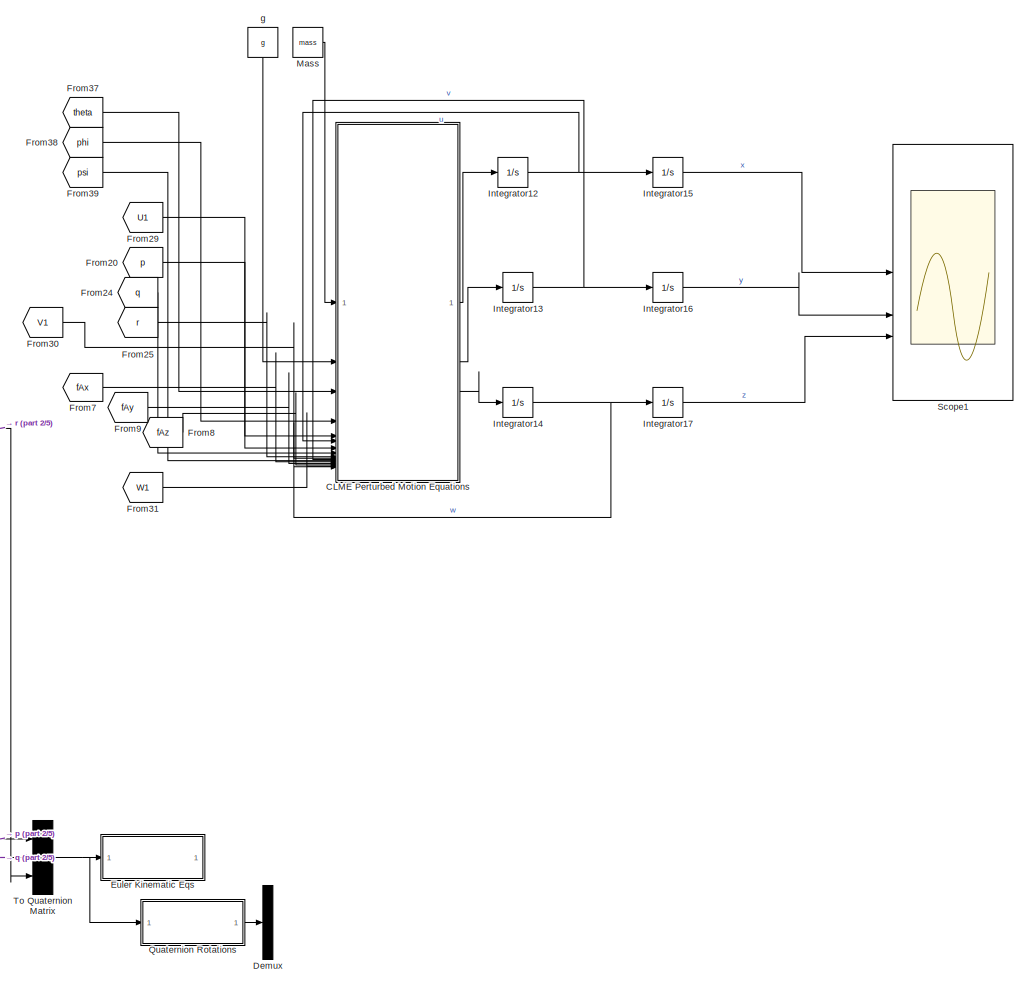
[diagram: root canvas - part 1/5, top right region]
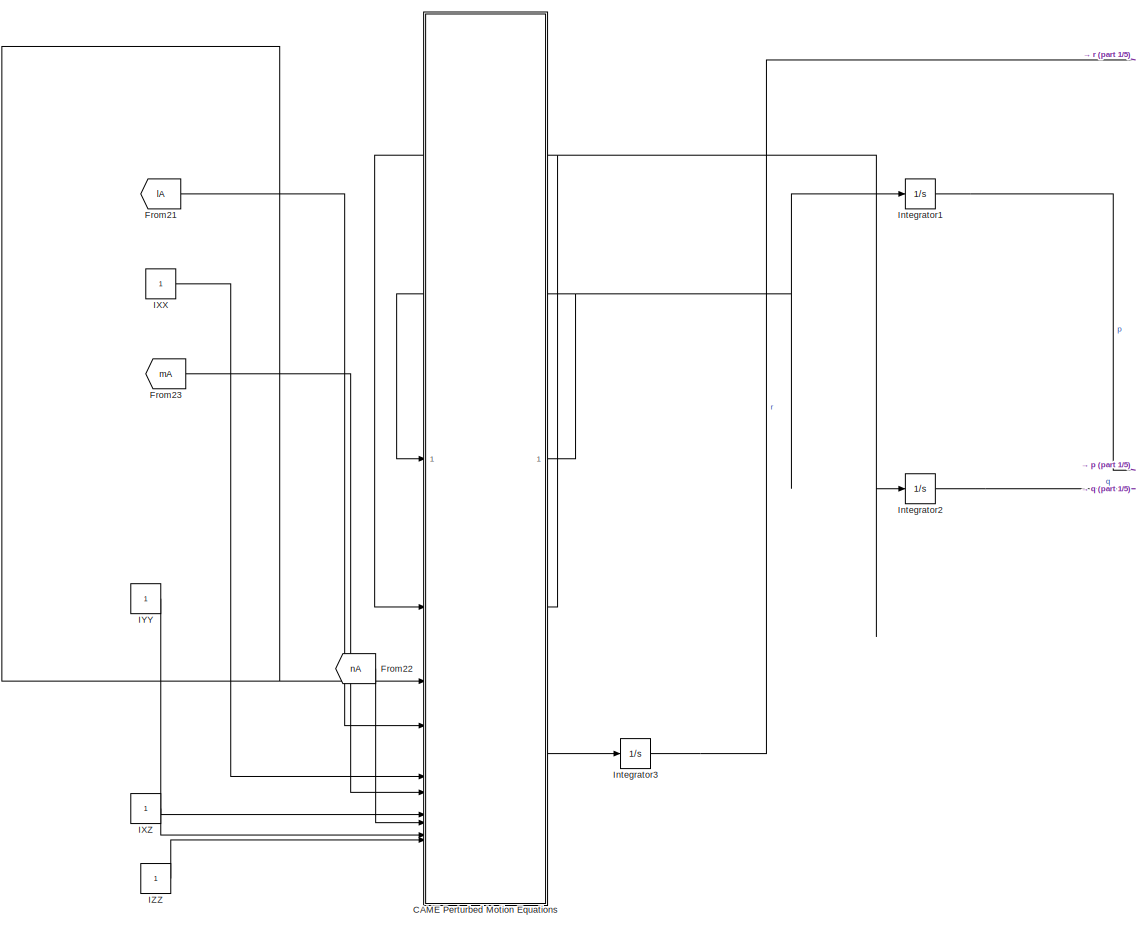
[diagram: root canvas - part 2/5, top center region]
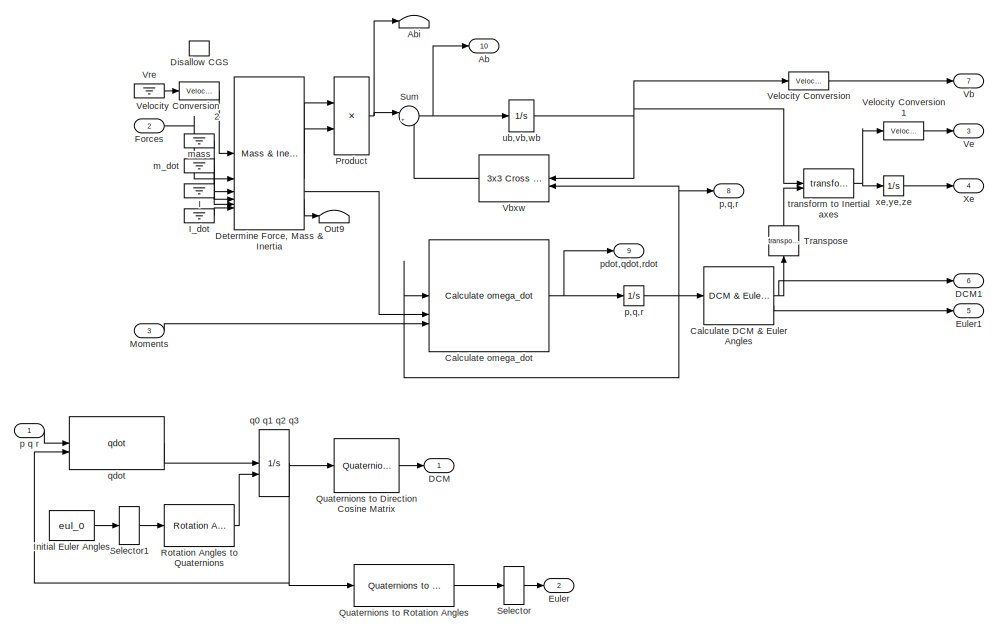
[diagram: root canvas - part 3/5, middle left region]
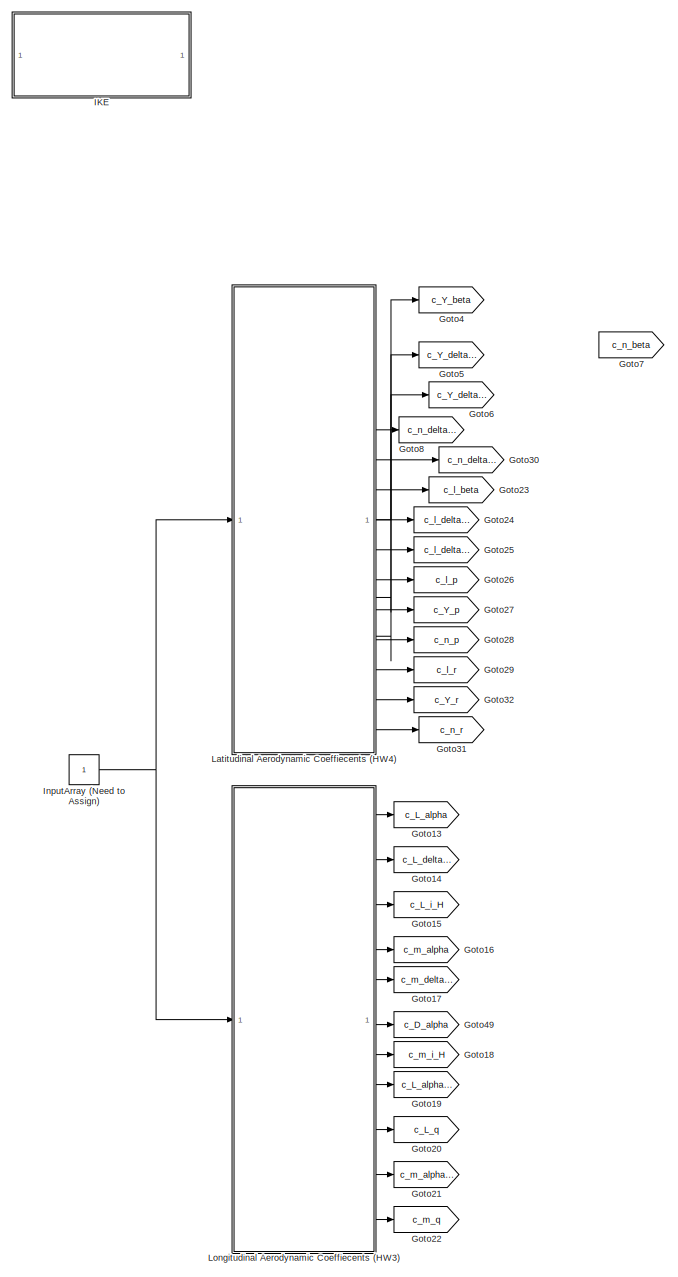
[diagram: root canvas - part 4/5, bottom center region]
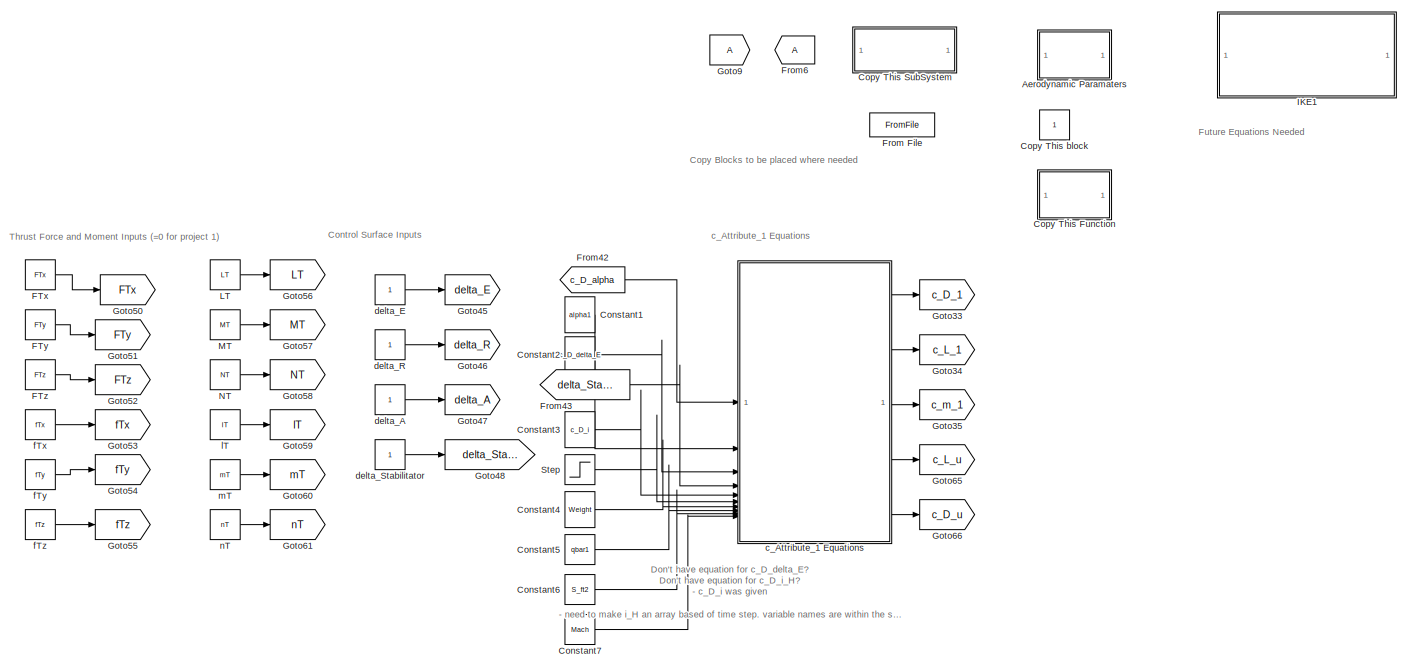
[diagram: root canvas - part 5/5, bottom right region]
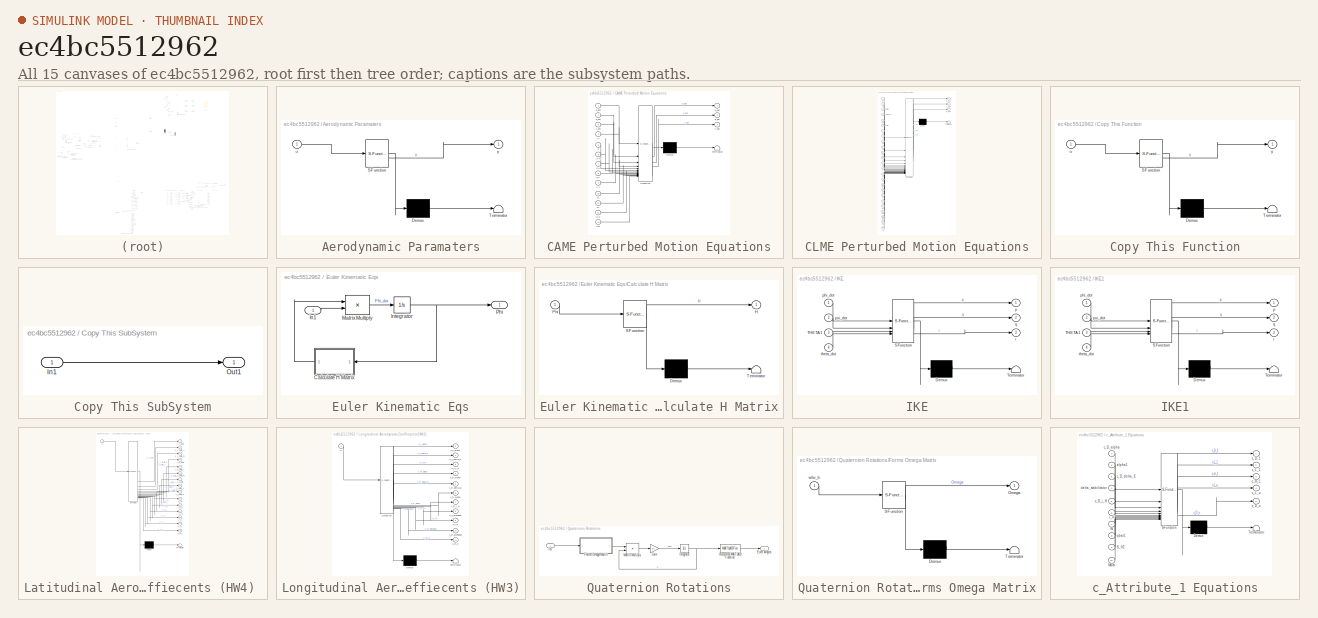
[diagram: thumbnail index - all 15 canvases of the model, root first then tree order]
MODEL slx_ec4bc5512962
KIND model
CONFIG AbsTol = auto
CONFIG EnableMultiTasking = off
CONFIG FixedStep = auto
CONFIG MaxStep = auto
CONFIG MinStep = auto
CONFIG RelTol = 1e-3
CONFIG SampleTimeConstraint = Unconstrained
CONFIG SolverName = VariableStepAuto
CONFIG StartTime = 0.0
CONFIG StopTime = 10.0
BLOCK [Outport] Ab
  OutDataTypeStr = double
  Port = 10
  Unit = ft/s^2
  VectorParamsAs1DForOutWhenUnconnected = off
BLOCK [Terminator] Abi
BLOCK [SubSystem] Aerodynamic Paramaters
  ErrorFcn = Stateflow.Translate.translate
  PermitHierarchicalResolution = ExplicitOnly
  SFBlockType = MATLAB Function
  TreatAsAtomicUnit = on
BLOCK [Demux] Aerodynamic Paramaters/ Demux 
  Outputs = 1
BLOCK [S-Function] Aerodynamic Paramaters/ SFunction 
  EnableBusSupport = on
  FunctionName = sf_sfun
  PortCounts = [1 2]
  SFcnIsStateOwnerBlock = off
  SFunctionDeploymentMode = off
  Tag = Stateflow S-Function 3
BLOCK [Terminator] Aerodynamic Paramaters/ Terminator 
BLOCK [Inport] Aerodynamic Paramaters/u
BLOCK [Outport] Aerodynamic Paramaters/y
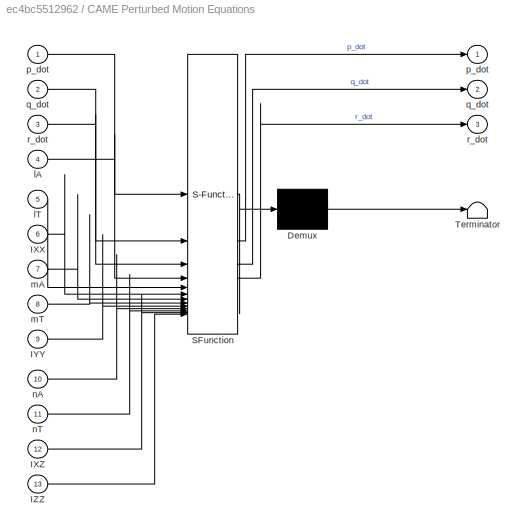
BLOCK [SubSystem] CAME Perturbed Motion Equations
  ErrorFcn = Stateflow.Translate.translate
  PermitHierarchicalResolution = ExplicitOnly
  SFBlockType = MATLAB Function
  TreatAsAtomicUnit = on
BLOCK [Demux] CAME Perturbed Motion Equations/ Demux 
  Outputs = 1
BLOCK [S-Function] CAME Perturbed Motion Equations/ SFunction 
  EnableBusSupport = on
  FunctionName = sf_sfun
  PortCounts = [13 4]
  SFcnIsStateOwnerBlock = off
  SFunctionDeploymentMode = off
  Tag = Stateflow S-Function 12
BLOCK [Terminator] CAME Perturbed Motion Equations/ Terminator 
BLOCK [Inport] CAME Perturbed Motion Equations/IXX
  Port = 6
BLOCK [Inport] CAME Perturbed Motion Equations/IXZ
  Port = 12
BLOCK [Inport] CAME Perturbed Motion Equations/IYY
  Port = 9
BLOCK [Inport] CAME Perturbed Motion Equations/IZZ
  Port = 13
BLOCK [Inport] CAME Perturbed Motion Equations/lA
  Port = 4
BLOCK [Inport] CAME Perturbed Motion Equations/lT
  Port = 5
BLOCK [Inport] CAME Perturbed Motion Equations/mA
  Port = 7
BLOCK [Inport] CAME Perturbed Motion Equations/mT
  Port = 8
BLOCK [Inport] CAME Perturbed Motion Equations/nA
  Port = 10
BLOCK [Inport] CAME Perturbed Motion Equations/nT
  Port = 11
BLOCK [Outport] CAME Perturbed Motion Equations/p_dot
BLOCK [Inport] CAME Perturbed Motion Equations/p_dot 
BLOCK [Outport] CAME Perturbed Motion Equations/q_dot
  Port = 2
BLOCK [Inport] CAME Perturbed Motion Equations/q_dot 
  Port = 2
BLOCK [Outport] CAME Perturbed Motion Equations/r_dot
  Port = 3
BLOCK [Inport] CAME Perturbed Motion Equations/r_dot 
  Port = 3
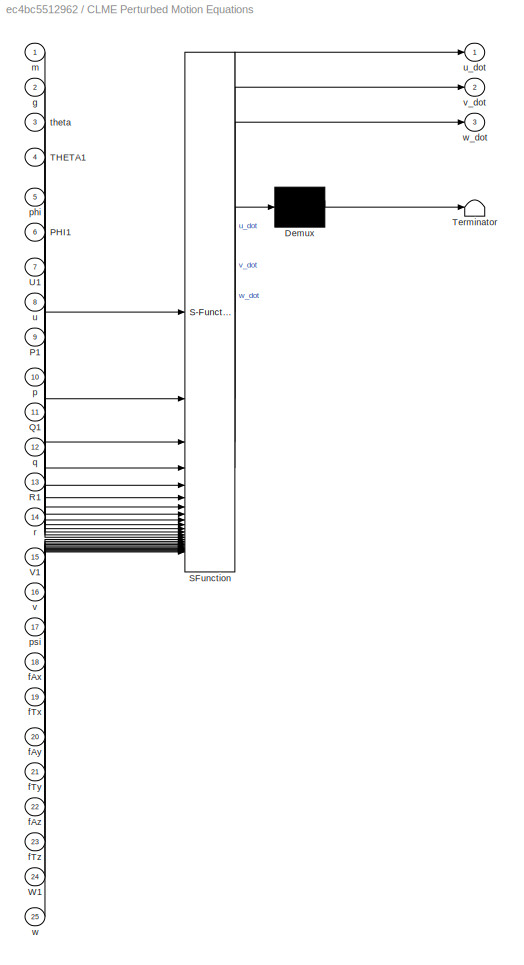
BLOCK [SubSystem] CLME Perturbed Motion Equations
  ErrorFcn = Stateflow.Translate.translate
  PermitHierarchicalResolution = ExplicitOnly
  SFBlockType = MATLAB Function
  TreatAsAtomicUnit = on
BLOCK [Demux] CLME Perturbed Motion Equations/ Demux 
  Outputs = 1
BLOCK [S-Function] CLME Perturbed Motion Equations/ SFunction 
  EnableBusSupport = on
  FunctionName = sf_sfun
  PortCounts = [25 4]
  SFcnIsStateOwnerBlock = off
  SFunctionDeploymentMode = off
  Tag = Stateflow S-Function 5
BLOCK [Terminator] CLME Perturbed Motion Equations/ Terminator 
BLOCK [Inport] CLME Perturbed Motion Equations/P1
  Port = 9
BLOCK [Inport] CLME Perturbed Motion Equations/PHI1
  Port = 6
BLOCK [Inport] CLME Perturbed Motion Equations/Q1
  Port = 11
BLOCK [Inport] CLME Perturbed Motion Equations/R1
  Port = 13
BLOCK [Inport] CLME Perturbed Motion Equations/THETA1
  Port = 4
BLOCK [Inport] CLME Perturbed Motion Equations/U1
  Port = 7
BLOCK [Inport] CLME Perturbed Motion Equations/V1
  Port = 15
BLOCK [Inport] CLME Perturbed Motion Equations/W1
  Port = 24
BLOCK [Inport] CLME Perturbed Motion Equations/fAx
  Port = 18
BLOCK [Inport] CLME Perturbed Motion Equations/fAy
  Port = 20
BLOCK [Inport] CLME Perturbed Motion Equations/fAz
  Port = 22
BLOCK [Inport] CLME Perturbed Motion Equations/fTx
  Port = 19
BLOCK [Inport] CLME Perturbed Motion Equations/fTy
  Port = 21
BLOCK [Inport] CLME Perturbed Motion Equations/fTz
  Port = 23
BLOCK [Inport] CLME Perturbed Motion Equations/g
  Port = 2
BLOCK [Inport] CLME Perturbed Motion Equations/m
BLOCK [Inport] CLME Perturbed Motion Equations/p
  Port = 10
BLOCK [Inport] CLME Perturbed Motion Equations/phi
  Port = 5
BLOCK [Inport] CLME Perturbed Motion Equations/psi
  Port = 17
BLOCK [Inport] CLME Perturbed Motion Equations/q
  Port = 12
BLOCK [Inport] CLME Perturbed Motion Equations/r
  Port = 14
BLOCK [Inport] CLME Perturbed Motion Equations/theta
  Port = 3
BLOCK [Inport] CLME Perturbed Motion Equations/u
  Port = 8
BLOCK [Outport] CLME Perturbed Motion Equations/u_dot
BLOCK [Inport] CLME Perturbed Motion Equations/v
  Port = 16
BLOCK [Outport] CLME Perturbed Motion Equations/v_dot
  Port = 2
BLOCK [Inport] CLME Perturbed Motion Equations/w
  Port = 25
BLOCK [Outport] CLME Perturbed Motion Equations/w_dot
  Port = 3
BLOCK [Reference] Calculate DCM & Euler Angles  REF=shared6dofsys/DCM & Euler Angles (Quaternion)  (lib defined in slx_91fbb8bad28b)
  SourceBlock = shared6dofsys/DCM & Euler Angles (Quaternion)
  SourceType = DCM & Euler Angles (Quaternion)
BLOCK [Reference] Calculate omega_dot  REF=shared6dofsys/Calculate omega_dot  (lib defined in slx_91fbb8bad28b)
  SourceBlock = shared6dofsys/Calculate omega_dot
BLOCK [Constant] Constant1
  NameLocation = left
  Value = alpha1
BLOCK [Constant] Constant2
  NameLocation = left
  Value = c_D_delta_E
BLOCK [Constant] Constant3
  NameLocation = left
  Value = c_D_i
BLOCK [Constant] Constant4
  NameLocation = left
  Value = Weight
BLOCK [Constant] Constant5
  Value = qbar1
BLOCK [Constant] Constant6
  Value = S_ft2
BLOCK [Constant] Constant7
  Value = Mach
BLOCK [SubSystem] Copy This Function
  ErrorFcn = Stateflow.Translate.translate
  PermitHierarchicalResolution = ExplicitOnly
  SFBlockType = MATLAB Function
  TreatAsAtomicUnit = on
BLOCK [Demux] Copy This Function/ Demux 
  Outputs = 1
BLOCK [S-Function] Copy This Function/ SFunction 
  EnableBusSupport = on
  FunctionName = sf_sfun
  PortCounts = [1 2]
  SFcnIsStateOwnerBlock = off
  SFunctionDeploymentMode = off
  Tag = Stateflow S-Function 4
BLOCK [Terminator] Copy This Function/ Terminator 
BLOCK [Inport] Copy This Function/u
BLOCK [Outport] Copy This Function/y
BLOCK [SubSystem] Copy This SubSystem
BLOCK [Inport] Copy This SubSystem/In1
BLOCK [Outport] Copy This SubSystem/Out1
BLOCK [Constant] Copy This block
BLOCK [Outport] DCM
  OutDataTypeStr = double
  VectorParamsAs1DForOutWhenUnconnected = off
BLOCK [Outport] DCM1
  OutDataTypeStr = double
  Port = 6
  Unit = 1
  VectorParamsAs1DForOutWhenUnconnected = off
BLOCK [Demux] Demux
  Outputs = 3
BLOCK [Reference] Determine Force, Mass & Inertia  REF=shared6dofsys/Mass & Inertia (fixed)  (lib defined in slx_91fbb8bad28b)
  SourceBlock = shared6dofsys/Mass & Inertia (fixed)
  SourceType = Mass & Inertia (fixed)
BLOCK [UnitConfiguration] Disallow CGS
  AllowAllUnitSystems = off
  UnitSystemsStr = English,SI,SI (extended)
BLOCK [Outport] Euler
  OutDataTypeStr = double
  Port = 2
  VectorParamsAs1DForOutWhenUnconnected = off
BLOCK [SubSystem] Euler Kinematic Eqs
BLOCK [SubSystem] Euler Kinematic Eqs/Calculate H Matrix
  ErrorFcn = Stateflow.Translate.translate
  NameLocation = top
  PermitHierarchicalResolution = ExplicitOnly
  SFBlockType = MATLAB Function
  TreatAsAtomicUnit = on
BLOCK [Demux] Euler Kinematic Eqs/Calculate H Matrix/ Demux 
  Outputs = 1
BLOCK [S-Function] Euler Kinematic Eqs/Calculate H Matrix/ SFunction 
  EnableBusSupport = on
  FunctionName = sf_sfun
  PortCounts = [1 2]
  SFcnIsStateOwnerBlock = off
  SFunctionDeploymentMode = off
  Tag = Stateflow S-Function 8
BLOCK [Terminator] Euler Kinematic Eqs/Calculate H Matrix/ Terminator 
BLOCK [Outport] Euler Kinematic Eqs/Calculate H Matrix/H
  VectorParamsAs1DForOutWhenUnconnected = off
BLOCK [Inport] Euler Kinematic Eqs/Calculate H Matrix/Phi
BLOCK [Inport] Euler Kinematic Eqs/In1
BLOCK [Integrator] Euler Kinematic Eqs/Integrator
BLOCK [Product] Euler Kinematic Eqs/Matrix Multiply
  Multiplication = Matrix(*)
BLOCK [Outport] Euler Kinematic Eqs/Phi
BLOCK [Outport] Euler1
  OutDataTypeStr = double
  Port = 5
  Unit = rad
  VectorParamsAs1DForOutWhenUnconnected = off
BLOCK [Constant] FTx
  Value = FTx
BLOCK [Constant] FTy
  Value = FTy
BLOCK [Constant] FTz
  Value = FTz
BLOCK [Inport] Forces
  OutDataTypeStr = double
  Port = 2
  PortDimensions = 3
  Unit = lb
BLOCK [FromFile] From File
  SampleTime = 0
BLOCK [From] From20
  GotoTag = p
BLOCK [From] From21
  GotoTag = lA
BLOCK [From] From22
  GotoTag = nA
BLOCK [From] From23
  GotoTag = mA
BLOCK [From] From24
  GotoTag = q
BLOCK [From] From25
  GotoTag = r
BLOCK [From] From29
  GotoTag = U1
  NameLocation = top
BLOCK [From] From30
  GotoTag = V1
BLOCK [From] From31
  GotoTag = W1
BLOCK [From] From37
  GotoTag = theta
BLOCK [From] From38
  GotoTag = phi
BLOCK [From] From39
  GotoTag = psi
BLOCK [From] From42
  GotoTag = c_D_alpha
BLOCK [From] From43
  GotoTag = delta_Stabilitator
BLOCK [From] From6
BLOCK [From] From7
  GotoTag = fAx
BLOCK [From] From8
  GotoTag = fAz
BLOCK [From] From9
  GotoTag = fAy
BLOCK [Goto] Goto13
  GotoTag = c_L_alpha
BLOCK [Goto] Goto14
  GotoTag = c_L_delta_E
BLOCK [Goto] Goto15
  GotoTag = c_L_i_H
BLOCK [Goto] Goto16
  GotoTag = c_m_alpha
BLOCK [Goto] Goto17
  GotoTag = c_m_delta_E
BLOCK [Goto] Goto18
  GotoTag = c_m_i_H
BLOCK [Goto] Goto19
  GotoTag = c_L_alphadot
BLOCK [Goto] Goto20
  GotoTag = c_L_q
BLOCK [Goto] Goto21
  GotoTag = c_m_alphadot
BLOCK [Goto] Goto22
  GotoTag = c_m_q
BLOCK [Goto] Goto23
  GotoTag = c_l_beta
BLOCK [Goto] Goto24
  GotoTag = c_l_delta_A
BLOCK [Goto] Goto25
  GotoTag = c_l_delta_R
BLOCK [Goto] Goto26
  GotoTag = c_l_p
BLOCK [Goto] Goto27
  GotoTag = c_Y_p
BLOCK [Goto] Goto28
  GotoTag = c_n_p
BLOCK [Goto] Goto29
  GotoTag = c_l_r
BLOCK [Goto] Goto30
  GotoTag = c_n_delta_R
BLOCK [Goto] Goto31
  GotoTag = c_n_r
BLOCK [Goto] Goto32
  GotoTag = c_Y_r
BLOCK [Goto] Goto33
  GotoTag = c_D_1
BLOCK [Goto] Goto34
  GotoTag = c_L_1
BLOCK [Goto] Goto35
  GotoTag = c_m_1
BLOCK [Goto] Goto4
  GotoTag = c_Y_beta
BLOCK [Goto] Goto45
  GotoTag = delta_E
BLOCK [Goto] Goto46
  GotoTag = delta_R
BLOCK [Goto] Goto47
  GotoTag = delta_A
BLOCK [Goto] Goto48
  GotoTag = delta_Stabilitator
BLOCK [Goto] Goto49
  GotoTag = c_D_alpha
BLOCK [Goto] Goto5
  GotoTag = c_Y_delta_A
BLOCK [Goto] Goto50
  GotoTag = FTx
BLOCK [Goto] Goto51
  GotoTag = FTy
BLOCK [Goto] Goto52
  GotoTag = FTz
BLOCK [Goto] Goto53
  GotoTag = fTx
BLOCK [Goto] Goto54
  GotoTag = fTy
BLOCK [Goto] Goto55
  GotoTag = fTz
BLOCK [Goto] Goto56
  GotoTag = LT
BLOCK [Goto] Goto57
  GotoTag = MT
BLOCK [Goto] Goto58
  GotoTag = NT
BLOCK [Goto] Goto59
  GotoTag = lT
BLOCK [Goto] Goto6
  GotoTag = c_Y_delta_R
BLOCK [Goto] Goto60
  GotoTag = mT
BLOCK [Goto] Goto61
  GotoTag = nT
BLOCK [Goto] Goto65
  GotoTag = c_L_u
BLOCK [Goto] Goto66
  GotoTag = c_D_u
BLOCK [Goto] Goto7
  GotoTag = c_n_beta
BLOCK [Goto] Goto8
  GotoTag = c_n_delta_A
BLOCK [Goto] Goto9
BLOCK [Ground] I
BLOCK [SubSystem] IKE
  ErrorFcn = Stateflow.Translate.translate
  PermitHierarchicalResolution = ExplicitOnly
  SFBlockType = MATLAB Function
  TreatAsAtomicUnit = on
BLOCK [Demux] IKE/ Demux 
  Outputs = 1
BLOCK [S-Function] IKE/ SFunction 
  EnableBusSupport = on
  FunctionName = sf_sfun
  PortCounts = [4 4]
  SFcnIsStateOwnerBlock = off
  SFunctionDeploymentMode = off
  Tag = Stateflow S-Function 15
BLOCK [Terminator] IKE/ Terminator 
BLOCK [Inport] IKE/THETA1
  Port = 3
BLOCK [Outport] IKE/p
BLOCK [Inport] IKE/phi_dot
BLOCK [Inport] IKE/psi_dot
  Port = 2
BLOCK [Outport] IKE/q
  Port = 2
BLOCK [Outport] IKE/r
  Port = 3
BLOCK [Inport] IKE/theta_dot
  Port = 4
BLOCK [SubSystem] IKE1
  ErrorFcn = Stateflow.Translate.translate
  PermitHierarchicalResolution = ExplicitOnly
  SFBlockType = MATLAB Function
  TreatAsAtomicUnit = on
BLOCK [Demux] IKE1/ Demux 
  Outputs = 1
BLOCK [S-Function] IKE1/ SFunction 
  EnableBusSupport = on
  FunctionName = sf_sfun
  PortCounts = [4 4]
  SFcnIsStateOwnerBlock = off
  SFunctionDeploymentMode = off
  Tag = Stateflow S-Function 1
BLOCK [Terminator] IKE1/ Terminator 
BLOCK [Inport] IKE1/THETA1
  Port = 3
BLOCK [Outport] IKE1/p
BLOCK [Inport] IKE1/phi_dot
BLOCK [Inport] IKE1/psi_dot
  Port = 2
BLOCK [Outport] IKE1/q
  Port = 2
BLOCK [Outport] IKE1/r
  Port = 3
BLOCK [Inport] IKE1/theta_dot
  Port = 4
BLOCK [Constant] IXX 
BLOCK [Constant] IXZ
BLOCK [Constant] IYY
BLOCK [Constant] IZZ
BLOCK [Ground] I_dot
BLOCK [Constant] Initial Euler Angles
  Value = eul_0
BLOCK [Constant] InputArray (Need to Assign)
BLOCK [Integrator] Integrator1
BLOCK [Integrator] Integrator12
BLOCK [Integrator] Integrator13
BLOCK [Integrator] Integrator14
BLOCK [Integrator] Integrator15
BLOCK [Integrator] Integrator16
BLOCK [Integrator] Integrator17
BLOCK [Integrator] Integrator2
BLOCK [Integrator] Integrator3
BLOCK [Constant] LT
  Value = LT
BLOCK [SubSystem] Latitudinal Aerodynamic Coeffiecents (HW4) 
  ErrorFcn = Stateflow.Translate.translate
  PermitHierarchicalResolution = ExplicitOnly
  SFBlockType = MATLAB Function
  TreatAsAtomicUnit = on
BLOCK [Demux] Latitudinal Aerodynamic Coeffiecents (HW4) / Demux 
  Outputs = 1
BLOCK [S-Function] Latitudinal Aerodynamic Coeffiecents (HW4) / SFunction 
  EnableBusSupport = on
  FunctionName = sf_sfun
  PortCounts = [1 16]
  SFcnIsStateOwnerBlock = off
  SFunctionDeploymentMode = off
  Tag = Stateflow S-Function 6
BLOCK [Terminator] Latitudinal Aerodynamic Coeffiecents (HW4) / Terminator 
BLOCK [Outport] Latitudinal Aerodynamic Coeffiecents (HW4) /c_Y_beta
BLOCK [Outport] Latitudinal Aerodynamic Coeffiecents (HW4) /c_Y_delta_A
  Port = 2
BLOCK [Outport] Latitudinal Aerodynamic Coeffiecents (HW4) /c_Y_delta_R
  Port = 3
BLOCK [Outport] Latitudinal Aerodynamic Coeffiecents (HW4) /c_Y_p
  Port = 11
BLOCK [Outport] Latitudinal Aerodynamic Coeffiecents (HW4) /c_Y_r
  Port = 14
BLOCK [Outport] Latitudinal Aerodynamic Coeffiecents (HW4) /c_l_beta
  Port = 7
BLOCK [Outport] Latitudinal Aerodynamic Coeffiecents (HW4) /c_l_delta_A
  Port = 8
BLOCK [Outport] Latitudinal Aerodynamic Coeffiecents (HW4) /c_l_delta_R
  Port = 9
BLOCK [Outport] Latitudinal Aerodynamic Coeffiecents (HW4) /c_l_p
  Port = 10
BLOCK [Outport] Latitudinal Aerodynamic Coeffiecents (HW4) /c_l_r
  Port = 13
BLOCK [Outport] Latitudinal Aerodynamic Coeffiecents (HW4) /c_n_beta
  Port = 4
BLOCK [Outport] Latitudinal Aerodynamic Coeffiecents (HW4) /c_n_delta_A
  Port = 5
BLOCK [Outport] Latitudinal Aerodynamic Coeffiecents (HW4) /c_n_delta_R
  Port = 6
BLOCK [Outport] Latitudinal Aerodynamic Coeffiecents (HW4) /c_n_p
  Port = 12
BLOCK [Outport] Latitudinal Aerodynamic Coeffiecents (HW4) /c_n_r
  Port = 15
BLOCK [Inport] Latitudinal Aerodynamic Coeffiecents (HW4) /u
BLOCK [SubSystem] Longitudinal Aerodynamic Coeffiecents (HW3)
  ErrorFcn = Stateflow.Translate.translate
  PermitHierarchicalResolution = ExplicitOnly
  SFBlockType = MATLAB Function
  TreatAsAtomicUnit = on
BLOCK [Demux] Longitudinal Aerodynamic Coeffiecents (HW3)/ Demux 
  Outputs = 1
BLOCK [S-Function] Longitudinal Aerodynamic Coeffiecents (HW3)/ SFunction 
  EnableBusSupport = on
  FunctionName = sf_sfun
  PortCounts = [1 12]
  SFcnIsStateOwnerBlock = off
  SFunctionDeploymentMode = off
  Tag = Stateflow S-Function 7
BLOCK [Terminator] Longitudinal Aerodynamic Coeffiecents (HW3)/ Terminator 
BLOCK [Outport] Longitudinal Aerodynamic Coeffiecents (HW3)/c_D_alpha
  Port = 6
BLOCK [Outport] Longitudinal Aerodynamic Coeffiecents (HW3)/c_L_alpha
BLOCK [Outport] Longitudinal Aerodynamic Coeffiecents (HW3)/c_L_alphadot
  Port = 8
BLOCK [Outport] Longitudinal Aerodynamic Coeffiecents (HW3)/c_L_delta_E
  Port = 2
BLOCK [Outport] Longitudinal Aerodynamic Coeffiecents (HW3)/c_L_i_H
  Port = 3
BLOCK [Outport] Longitudinal Aerodynamic Coeffiecents (HW3)/c_L_q
  Port = 9
BLOCK [Outport] Longitudinal Aerodynamic Coeffiecents (HW3)/c_m_alpha
  Port = 4
BLOCK [Outport] Longitudinal Aerodynamic Coeffiecents (HW3)/c_m_alphadot
  Port = 10
BLOCK [Outport] Longitudinal Aerodynamic Coeffiecents (HW3)/c_m_delta_E
  Port = 5
BLOCK [Outport] Longitudinal Aerodynamic Coeffiecents (HW3)/c_m_i_H
  Port = 7
BLOCK [Outport] Longitudinal Aerodynamic Coeffiecents (HW3)/c_m_q
  Port = 11
BLOCK [Inport] Longitudinal Aerodynamic Coeffiecents (HW3)/u
BLOCK [Constant] MT
  Value = MT
BLOCK [Constant] Mass
  Value = mass
BLOCK [Inport] Moments
  OutDataTypeStr = double
  Port = 3
  PortDimensions = 3
  Unit = lb*ft
BLOCK [Constant] NT
  Value = NT
BLOCK [Terminator] Out9
BLOCK [Product] Product
  Inputs = */
  OutDataTypeStr = Inherit: Same as first input
  SaturateOnIntegerOverflow = on
BLOCK [SubSystem] Quaternion Rotations
BLOCK [Outport] Quaternion Rotations/Euler Angles
BLOCK [SubSystem] Quaternion Rotations/Forms Omega Matrix
  ErrorFcn = Stateflow.Translate.translate
  PermitHierarchicalResolution = ExplicitOnly
  SFBlockType = MATLAB Function
  TreatAsAtomicUnit = on
BLOCK [Demux] Quaternion Rotations/Forms Omega Matrix/ Demux 
  Outputs = 1
BLOCK [S-Function] Quaternion Rotations/Forms Omega Matrix/ SFunction 
  EnableBusSupport = on
  FunctionName = sf_sfun
  PortCounts = [1 2]
  SFcnIsStateOwnerBlock = off
  SFunctionDeploymentMode = off
  Tag = Stateflow S-Function 9
BLOCK [Terminator] Quaternion Rotations/Forms Omega Matrix/ Terminator 
BLOCK [Outport] Quaternion Rotations/Forms Omega Matrix/Omega
  VectorParamsAs1DForOutWhenUnconnected = off
BLOCK [Inport] Quaternion Rotations/Forms Omega Matrix/wbv_b
BLOCK [Gain] Quaternion Rotations/Gain
  Gain = 1/2
BLOCK [Inport] Quaternion Rotations/In1
BLOCK [Integrator] Quaternion Rotations/Integrator
  InitialCondition = q0
BLOCK [MATLABFcn] Quaternion Rotations/Interpreted MATLAB Function
  MATLABFcn = WrapperQuat2Angle
BLOCK [Product] Quaternion Rotations/Matrix Multiply
  Multiplication = Matrix(*)
BLOCK [Reference] Quaternions to Direction Cosine Matrix  REF=sharedtransform/Quaternions to 
Direction Cosine Matrix
  SourceBlock = sharedtransform/Quaternions to \nDirection Cosine Matrix
  SourceType = Quaternion2DCM
BLOCK [Reference] Quaternions to Rotation Angles  REF=sharedtransform/Quaternions to Rotation Angles
  AttributesFormatString = Rotation Order: %<rotationOrder>
  SourceBlock = sharedtransform/Quaternions to Rotation Angles
  SourceType = Quat2Ang
BLOCK [Reference] Rotation Angles to Quaternions  REF=sharedtransform/Rotation Angles to Quaternions
  AttributesFormatString = Rotation Order: %<rotationOrder>
  SourceBlock = sharedtransform/Rotation Angles to Quaternions
  SourceType = Ang2Quat
BLOCK [Scope] Scope1
  Floating = off
  NumInputPorts = 3
  ScopeSpecificationString = Simulink.scopes.TimeScopeBlockCfg('CurrentConfiguration', extmgr.ConfigurationSet(extmgr.Configuration('Core','General UI',true),extmgr.Configuration('Core','Source UI',true),extmgr.Configuration('Sources','WiredSimulink',true),extmgr.Configuration('Visuals','Time Domain',true),extmgr.Configuration('Tools','Plot Navigation',true),extmgr.Configuration('Tools','Measurements',true,'Version','2023b'))...<+19ch>
BLOCK [Selector] Selector
  IndexOptions = Index vector (dialog)
  Indices = [3 2 1]
  InputPortWidth = 3
  NameLocation = top
  OutputSizes = 1
BLOCK [Selector] Selector1
  IndexOptions = Index vector (dialog)
  Indices = [3 2 1]
  InputPortWidth = 3
  NameLocation = top
  OutputSizes = 1
BLOCK [Step] Step
  After = t_max
  Before = i_H
  SampleTime = 0
  Time = t
BLOCK [Sum] Sum
  Inputs = |++
  SaturateOnIntegerOverflow = on
BLOCK [Mux] To Quaternion Matrix
  DisplayOption = bar
  Inputs = 3
BLOCK [Math] Transpose
  NameLocation = right
  Operator = transpose
  SignedPower = on
BLOCK [Outport] Vb
  OutDataTypeStr = double
  Port = 7
  Unit = ft/s
  VectorParamsAs1DForOutWhenUnconnected = off
BLOCK [Reference] Vbxw  REF=sharedutil/3x3 Cross Product
  SourceBlock = sharedutil/3x3 Cross Product
  SourceType = CrossProduct
BLOCK [Outport] Ve
  OutDataTypeStr = double
  Port = 3
  Unit = ft/s
  VectorParamsAs1DForOutWhenUnconnected = off
BLOCK [Reference] Velocity Conversion  REF=shared6dof/6DOF (Euler Angles)/Velocity Conversion
  SourceBlock = shared6dof/6DOF (Euler Angles)/Velocity Conversion
  SourceType = SubSystem
BLOCK [Reference] Velocity Conversion1  REF=shared6dof/6DOF (Euler Angles)/Velocity Conversion1
  SourceBlock = shared6dof/6DOF (Euler Angles)/Velocity Conversion1
  SourceType = SubSystem
BLOCK [Reference] Velocity Conversion2  REF=shared6dof/6DOF (Euler Angles)/Velocity Conversion2
  SourceBlock = shared6dof/6DOF (Euler Angles)/Velocity Conversion2
  SourceType = SubSystem
BLOCK [Ground] Vre
BLOCK [Outport] Xe
  OutDataTypeStr = double
  Port = 4
  Unit = ft
  VectorParamsAs1DForOutWhenUnconnected = off
BLOCK [SubSystem] c_Attribute_1 Equations
  ErrorFcn = Stateflow.Translate.translate
  PermitHierarchicalResolution = ExplicitOnly
  SFBlockType = MATLAB Function
  TreatAsAtomicUnit = on
BLOCK [Demux] c_Attribute_1 Equations/ Demux 
  Outputs = 1
BLOCK [S-Function] c_Attribute_1 Equations/ SFunction 
  EnableBusSupport = on
  FunctionName = sf_sfun
  PortCounts = [10 6]
  SFcnIsStateOwnerBlock = off
  SFunctionDeploymentMode = off
  Tag = Stateflow S-Function 10
BLOCK [Terminator] c_Attribute_1 Equations/ Terminator 
BLOCK [Inport] c_Attribute_1 Equations/Mach
  Port = 10
BLOCK [Inport] c_Attribute_1 Equations/S_ft2
  Port = 9
BLOCK [Inport] c_Attribute_1 Equations/W
  Port = 7
BLOCK [Inport] c_Attribute_1 Equations/alpha1
  Port = 2
BLOCK [Outport] c_Attribute_1 Equations/c_D_1
BLOCK [Inport] c_Attribute_1 Equations/c_D_alpha
BLOCK [Inport] c_Attribute_1 Equations/c_D_delta_E
  Port = 3
BLOCK [Inport] c_Attribute_1 Equations/c_D_i_H
  Port = 5
BLOCK [Outport] c_Attribute_1 Equations/c_D_u
  Port = 5
BLOCK [Outport] c_Attribute_1 Equations/c_L_1
  Port = 2
BLOCK [Outport] c_Attribute_1 Equations/c_L_u
  Port = 4
BLOCK [Outport] c_Attribute_1 Equations/c_m_1
  Port = 3
BLOCK [Inport] c_Attribute_1 Equations/delta_stabilitator
  Port = 4
BLOCK [Inport] c_Attribute_1 Equations/i_H
  Port = 6
BLOCK [Inport] c_Attribute_1 Equations/qbar1
  Port = 8
BLOCK [Constant] delta_A
BLOCK [Constant] delta_E
BLOCK [Constant] delta_R
BLOCK [Constant] delta_Stabilitator
BLOCK [Constant] fTx
  Value = fTx
BLOCK [Constant] fTy
  Value = fTy
BLOCK [Constant] fTz
  Value = fTz
BLOCK [Constant] g
  NameLocation = top
  Value = g
BLOCK [Constant] lT
  Value = lT
BLOCK [Constant] mT
  Value = mT
BLOCK [Ground] m_dot
BLOCK [Ground] mass
BLOCK [Constant] nT
  Value = nT
BLOCK [Inport] p q r
  OutDataTypeStr = double
BLOCK [Outport] p,q,r
  OutDataTypeStr = double
  Port = 8
  Unit = rad/s
  VectorParamsAs1DForOutWhenUnconnected = off
BLOCK [Integrator] p,q,r 
  ContinuousStateAttributes = pm_statename
  InitialCondition = pm_0
BLOCK [Outport] pdot,qdot,rdot
  OutDataTypeStr = double
  Port = 9
  Unit = rad/s^2
  VectorParamsAs1DForOutWhenUnconnected = off
BLOCK [Integrator] q0 q1 q2 q3
  ContinuousStateAttributes = quat_statename
  InitialCondition = [e0_0 e1_0 e2_0 e3_0]
  InitialConditionSource = external
BLOCK [Reference] qdot  REF=shared6dofsys/DCM & Euler Angles (Quaternion)/qdot  (lib defined in slx_91fbb8bad28b)
  SourceBlock = shared6dofsys/DCM & Euler Angles (Quaternion)/qdot
  SourceType = SubSystem
BLOCK [Reference] transform to Inertial axes   REF=shared6dof/6DOF (Euler Angles)/transform to
Inertial axes 
  SourceBlock = shared6dof/6DOF (Euler Angles)/transform to\nInertial axes
  SourceType = Vector Transformation
BLOCK [Integrator] ub,vb,wb
  ContinuousStateAttributes = Vm_statename
  InitialCondition = Vm_0
BLOCK [Integrator] xe,ye,ze
  ContinuousStateAttributes = xme_statename
  InitialCondition = xme_0
ANNOTATION (root): Control Surface Inputs
ANNOTATION (root): Copy Blocks to be placed where needed
ANNOTATION (root): Don't have equation for c_D_delta_E? Don't have equation for c_D_i_H? - c_D_i was given - need to make i_H an array based of time step. variable names are within the step block
ANNOTATION (root): Future Equations Needed
ANNOTATION (root): Thrust Force and Moment Inputs (=0 for project 1)
ANNOTATION (root): c_Attribute_1 Equations
NET CAME Perturbed Motion Equations:1 -> CAME Perturbed Motion Equations:1, Integrator1:1
NET CAME Perturbed Motion Equations:2 -> CAME Perturbed Motion Equations:2, Integrator2:1
NET CAME Perturbed Motion Equations:3 -> CAME Perturbed Motion Equations:3, Integrator3:1
LINE CLME Perturbed Motion Equations:1 -> Integrator12:1
LINE CLME Perturbed Motion Equations:2 -> Integrator13:1
LINE CLME Perturbed Motion Equations:3 -> Integrator14:1
NET Calculate DCM & Euler Angles:1 -> DCM1:1, Transpose:1
LINE Calculate DCM & Euler Angles:2 -> Euler1:1
NET Calculate omega_dot:1 -> p,q,r :1, pdot,qdot,rdot:1
LINE Constant1:1 -> c_Attribute_1 Equations:2
LINE Constant2:1 -> c_Attribute_1 Equations:3
LINE Constant3:1 -> c_Attribute_1 Equations:5
LINE Constant4:1 -> c_Attribute_1 Equations:7
LINE Constant5:1 -> c_Attribute_1 Equations:8
LINE Constant6:1 -> c_Attribute_1 Equations:9
LINE Constant7:1 -> c_Attribute_1 Equations:10
LINE Copy This SubSystem/In1:1 -> Copy This SubSystem/Out1:1
LINE Determine Force, Mass & Inertia:1 -> Product:1
LINE Determine Force, Mass & Inertia:2 -> Product:2
LINE Determine Force, Mass & Inertia:3 -> Calculate omega_dot:2
LINE Determine Force, Mass & Inertia:4 -> Out9:1
LINE Euler Kinematic Eqs/Calculate H Matrix:1 -> Euler Kinematic Eqs/Matrix Multiply:1
LINE Euler Kinematic Eqs/In1:1 -> Euler Kinematic Eqs/Matrix Multiply:2
NET Euler Kinematic Eqs/Integrator:1 -> Euler Kinematic Eqs/Calculate H Matrix:1, Euler Kinematic Eqs/Phi:1
LINE Euler Kinematic Eqs/Matrix Multiply:1 -> Euler Kinematic Eqs/Integrator:1
LINE FTx:1 -> Goto50:1
LINE FTy:1 -> Goto51:1
LINE FTz:1 -> Goto52:1
LINE Forces:1 -> Determine Force, Mass & Inertia:2
LINE From20:1 -> CLME Perturbed Motion Equations:10
LINE From21:1 -> CAME Perturbed Motion Equations:4
LINE From22:1 -> CAME Perturbed Motion Equations:10
LINE From23:1 -> CAME Perturbed Motion Equations:7
LINE From24:1 -> CLME Perturbed Motion Equations:12
LINE From25:1 -> CLME Perturbed Motion Equations:14
LINE From29:1 -> CLME Perturbed Motion Equations:7
LINE From30:1 -> CLME Perturbed Motion Equations:15
LINE From31:1 -> CLME Perturbed Motion Equations:24
LINE From37:1 -> CLME Perturbed Motion Equations:3
LINE From38:1 -> CLME Perturbed Motion Equations:5
LINE From39:1 -> CLME Perturbed Motion Equations:17
LINE From42:1 -> c_Attribute_1 Equations:1
LINE From43:1 -> c_Attribute_1 Equations:4
LINE From7:1 -> CLME Perturbed Motion Equations:18
LINE From8:1 -> CLME Perturbed Motion Equations:22
LINE From9:1 -> CLME Perturbed Motion Equations:20
LINE I:1 -> Determine Force, Mass & Inertia:5
LINE IXX :1 -> CAME Perturbed Motion Equations:6
LINE IXZ:1 -> CAME Perturbed Motion Equations:12
LINE IYY:1 -> CAME Perturbed Motion Equations:9
LINE IZZ:1 -> CAME Perturbed Motion Equations:13
LINE I_dot:1 -> Determine Force, Mass & Inertia:6
LINE Initial Euler Angles:1 -> Selector1:1
NET InputArray (Need to Assign):1 -> Latitudinal Aerodynamic Coeffiecents (HW4) :1, Longitudinal Aerodynamic Coeffiecents (HW3):1
NET Integrator12:1 -> CLME Perturbed Motion Equations:8, Integrator15:1
NET Integrator13:1 -> CLME Perturbed Motion Equations:16, Integrator16:1
NET Integrator14:1 -> CLME Perturbed Motion Equations:25, Integrator17:1
LINE Integrator15:1 -> Scope1:1
LINE Integrator16:1 -> Scope1:2
LINE Integrator17:1 -> Scope1:3
LINE Integrator1:1 -> To Quaternion Matrix:1
LINE Integrator2:1 -> To Quaternion Matrix:2
LINE Integrator3:1 -> To Quaternion Matrix:3
LINE LT:1 -> Goto56:1
LINE Latitudinal Aerodynamic Coeffiecents (HW4) :1 -> Goto4:1
LINE Latitudinal Aerodynamic Coeffiecents (HW4) :10 -> Goto26:1
LINE Latitudinal Aerodynamic Coeffiecents (HW4) :11 -> Goto27:1
LINE Latitudinal Aerodynamic Coeffiecents (HW4) :12 -> Goto28:1
LINE Latitudinal Aerodynamic Coeffiecents (HW4) :13 -> Goto29:1
LINE Latitudinal Aerodynamic Coeffiecents (HW4) :14 -> Goto32:1
LINE Latitudinal Aerodynamic Coeffiecents (HW4) :15 -> Goto31:1
LINE Latitudinal Aerodynamic Coeffiecents (HW4) :2 -> Goto5:1
LINE Latitudinal Aerodynamic Coeffiecents (HW4) :3 -> Goto6:1
LINE Latitudinal Aerodynamic Coeffiecents (HW4) :5 -> Goto8:1
LINE Latitudinal Aerodynamic Coeffiecents (HW4) :6 -> Goto30:1
LINE Latitudinal Aerodynamic Coeffiecents (HW4) :7 -> Goto23:1
LINE Latitudinal Aerodynamic Coeffiecents (HW4) :8 -> Goto24:1
LINE Latitudinal Aerodynamic Coeffiecents (HW4) :9 -> Goto25:1
LINE Longitudinal Aerodynamic Coeffiecents (HW3):1 -> Goto13:1
LINE Longitudinal Aerodynamic Coeffiecents (HW3):10 -> Goto21:1
LINE Longitudinal Aerodynamic Coeffiecents (HW3):11 -> Goto22:1
LINE Longitudinal Aerodynamic Coeffiecents (HW3):2 -> Goto14:1
LINE Longitudinal Aerodynamic Coeffiecents (HW3):3 -> Goto15:1
LINE Longitudinal Aerodynamic Coeffiecents (HW3):4 -> Goto16:1
LINE Longitudinal Aerodynamic Coeffiecents (HW3):5 -> Goto17:1
LINE Longitudinal Aerodynamic Coeffiecents (HW3):6 -> Goto49:1
LINE Longitudinal Aerodynamic Coeffiecents (HW3):7 -> Goto18:1
LINE Longitudinal Aerodynamic Coeffiecents (HW3):8 -> Goto19:1
LINE Longitudinal Aerodynamic Coeffiecents (HW3):9 -> Goto20:1
LINE MT:1 -> Goto57:1
LINE Mass:1 -> CLME Perturbed Motion Equations:1
LINE Moments:1 -> Calculate omega_dot:3
LINE NT:1 -> Goto58:1
NET Product:1 -> Abi:1, Sum:1
LINE Quaternion Rotations/Forms Omega Matrix:1 -> Quaternion Rotations/Matrix Multiply:1
LINE Quaternion Rotations/Gain:1 -> Quaternion Rotations/Integrator:1
LINE Quaternion Rotations/In1:1 -> Quaternion Rotations/Forms Omega Matrix:1
NET Quaternion Rotations/Integrator:1 -> Quaternion Rotations/Interpreted MATLAB Function:1, Quaternion Rotations/Matrix Multiply:2
LINE Quaternion Rotations/Interpreted MATLAB Function:1 -> Quaternion Rotations/Euler Angles:1
LINE Quaternion Rotations/Matrix Multiply:1 -> Quaternion Rotations/Gain:1
LINE Quaternion Rotations:1 -> Demux:1
LINE Quaternions to Direction Cosine Matrix:1 -> DCM:1
LINE Quaternions to Rotation Angles:1 -> Selector:1
LINE Rotation Angles to Quaternions:1 -> q0 q1 q2 q3:2
LINE Selector1:1 -> Rotation Angles to Quaternions:1
LINE Selector:1 -> Euler:1
LINE Step:1 -> c_Attribute_1 Equations:6
NET Sum:1 -> Ab:1, ub,vb,wb:1
NET To Quaternion Matrix:1 -> Euler Kinematic Eqs:1, Quaternion Rotations:1
LINE Transpose:1 -> transform to Inertial axes :2
LINE Vbxw:1 -> Sum:2
LINE Velocity Conversion1:1 -> Ve:1
LINE Velocity Conversion2:1 -> Determine Force, Mass & Inertia:1
LINE Velocity Conversion:1 -> Vb:1
LINE Vre:1 -> Velocity Conversion2:1
LINE c_Attribute_1 Equations:1 -> Goto33:1
LINE c_Attribute_1 Equations:2 -> Goto34:1
LINE c_Attribute_1 Equations:3 -> Goto35:1
LINE c_Attribute_1 Equations:4 -> Goto65:1
LINE c_Attribute_1 Equations:5 -> Goto66:1
LINE delta_A:1 -> Goto47:1
LINE delta_E:1 -> Goto45:1
LINE delta_R:1 -> Goto46:1
LINE delta_Stabilitator:1 -> Goto48:1
LINE fTx:1 -> Goto53:1
LINE fTy:1 -> Goto54:1
LINE fTz:1 -> Goto55:1
LINE g:1 -> CLME Perturbed Motion Equations:2
LINE lT:1 -> Goto59:1
LINE mT:1 -> Goto60:1
LINE m_dot:1 -> Determine Force, Mass & Inertia:4
LINE mass:1 -> Determine Force, Mass & Inertia:3
LINE nT:1 -> Goto61:1
LINE p q r:1 -> qdot:1
NET p,q,r :1 -> Calculate DCM & Euler Angles:1, Calculate omega_dot:1, Vbxw:2, p,q,r:1
NET q0 q1 q2 q3:1 -> Quaternions to Direction Cosine Matrix:1, Quaternions to Rotation Angles:1, qdot:2
LINE qdot:1 -> q0 q1 q2 q3:1
NET transform to Inertial axes :1 -> Velocity Conversion1:1, xe,ye,ze:1
NET ub,vb,wb:1 -> Vbxw:1, Velocity Conversion:1, transform to Inertial axes :1
LINE xe,ye,ze:1 -> Xe:1
note: NET lines group one-source signal fan-out (src -> all destinations, sorted); 1:1 wires keep LINE
CHART Longitudinal Aerodynamic Coeffiecents (HW3) states=1 transitions=1
  STATE_LABEL 'eML_blk_kernel()'
  STATE_LABEL 'SCRIPT:\nfunction [c_L_alpha, c_L_delta_E, c_L_i_H, c_m_alpha, c_m_delta_E, c_D_alpha, c_m_i_H, c_L_alphadot, c_L_q, c_m_alphadot, c_m_q] = fcn(u)\n\nc_L_alpha_W = c_L_alpha_W_mach;\nc_L_alpha_H = c_L_alpha_H_mach*eta_H*(S_H/S_ft2)*(1-d_epsilon_dalpha_mach);\nc_L_alpha = c_L_alpha_W_mach + c_L_alpha_H;\n\nc_L_delta_E = 0; \n\nc_L_i_H = c_L_alpha_H_mach*eta_H*(S_H/S_ft2);\n\nc_m_alpha = (c_L_alpha_W_mach*(xba...<+1478ch>'
CHART Euler Kinematic Eqs/Calculate H Matrix states=1 transitions=1
  STATE_LABEL 'eML_blk_kernel()'
  STATE_LABEL 'SCRIPT:\nfunction H = fcn(Phi)\n\n%Unpack Phi\nphi     = Phi(1);\ntheta   = Phi(2);\npsi     = Phi(3);\n\n%Input the H matrix\nH = [1 tan(theta)*sin(phi) tan(theta)*cos(phi);\n    0 cos(phi) -sin(phi);\n    0 sin(phi)/cos(theta) cos(phi)/cos(theta)];\n'
CHART Quaternion Rotations/Forms Omega Matrix states=1 transitions=1
  STATE_LABEL 'eML_blk_kernel()'
  STATE_LABEL 'SCRIPT:\nfunction Omega  = fcn(wbv_b)\n\nwx = wbv_b(1);\nwy = wbv_b(2);\nwz = wbv_b(3);\n\nOmega = [0 -wx -wy -wz;\n    wx 0 wz -wy;\n    wy -wz 0 wx;\n    wz wy -wx 0];\n'
CHART c_Attribute_1 Equations states=1 transitions=1
  STATE_LABEL 'eML_blk_kernel()'
  STATE_LABEL 'SCRIPT:\nfunction [c_D_1, c_L_1, c_m_1, c_L_u, c_D_u] = fcn(c_D_alpha, alpha1, c_D_delta_E, delta_stabilitator, c_D_i_H, i_H, W, qbar1, S_ft2, Mach)\n\nc_D_0 = 0;\n\nc_D_1 = c_D_0 + (c_D_alpha*alpha1) + (c_D_delta_E * delta_stabilitator) + (c_D_i_H*i_H);\n\nc_L_1 = W/(qbar1*S_ft2);\n\nc_m_1 = 0;\n\nc_L_u = ((Mach^2)/(1-Mach^2))*c_L_1;\n\nc_D_u = 0;\n'
CHART CAME Perturbed Motion Equations states=1 transitions=1
  STATE_LABEL 'eML_blk_kernel()'
  STATE_LABEL 'SCRIPT:\nfunction [p_dot, q_dot, r_dot] = fcn(p_dot, q_dot, r_dot, lA, lT, IXX, mA, mT, IYY, nA, nT, IXZ, IZZ)\n%CAME - Still Needs to be fixed\n%P_dot = ((la+lt)+(R_dot.*IXZ)+(P.*Q.*IXZ)-((R*Q).*(IZZ-IYY)))./(IXX);\n%Q_dot = ((ma+mt)-(R_dot.*IXZ)+(P.*Q.*IXZ)-(R*Q).*(IZZ-IYY))./(IYY);\n%R_dot = ((nA+nT) + (P_dot*IXZ) - (((P1*q)+(p*Q1))*(IYY-IXX)) - (((Q1*r)+(R1*q))*IXZ))/(IZZ);\n\np_dot = ((r_dot*IXZ) + ...<+109ch>'
CHART IKE states=1 transitions=1
  STATE_LABEL 'eML_blk_kernel()'
  STATE_LABEL 'SCRIPT:\nfunction [p,q,r] = fcn(phi_dot, psi_dot, THETA1, theta_dot)\n\np = (phi_dot)-(psi_dot*sind(THETA1));\nq = theta_dot;\nr = psi_dot*cosd(THETA1);\n\n\ny = u;\n'
CHART IKE1 states=1 transitions=1
  STATE_LABEL 'eML_blk_kernel()'
  STATE_LABEL 'SCRIPT:\nfunction [p,q,r] = fcn(phi_dot, psi_dot, THETA1, theta_dot)\n\np = (phi_dot)-(psi_dot*sind(THETA1));\nq = theta_dot;\nr = psi_dot*cosd(THETA1);\n\n\ny = u;\n'
CHART Aerodynamic Paramaters states=1 transitions=1
  STATE_LABEL 'eML_blk_kernel()'
  STATE_LABEL 'SCRIPT:\nfunction y = fcn(u)\n\ny = u;\n'
CHART Copy This Function states=1 transitions=1
  STATE_LABEL 'eML_blk_kernel()'
  STATE_LABEL 'SCRIPT:\nfunction y = fcn(u)\n\ny = u;\n'
CHART CLME Perturbed Motion Equations states=1 transitions=1
  STATE_LABEL 'eML_blk_kernel()'
  STATE_LABEL 'SCRIPT:\nfunction [u_dot, v_dot, w_dot] = fcn(m, g, theta, THETA1, phi, PHI1, U1, u, P1, p, Q1, q, R1, r, V1, v, psi, fAx, fTx, fAy, fTy, fAz, fTz, W1, w)\n\n%Mass = 2300; %kg\n%g = 9.81; %m/s\n%theta = 0;\n%Fax = 0;\n%Ftx = 0;\n\n%u_dot = (1/m) * ((-m*g*theta*cosd(THETA1)) + (fAx + fTx) - (Q1*w) - (q*W1) + (R1*v) + (r*V1));\n%v_dot = (1/m) * (((-m*g*theta*sind(PHI1)*sind(THETA1))+(m*g*phi*cosd(PHI1)*cosd(T...<+414ch>'
CHART Latitudinal Aerodynamic Coeffiecents (HW4)  states=1 transitions=1
  STATE_LABEL 'eML_blk_kernel()'
  STATE_LABEL 'SCRIPT:\nfunction [c_Y_beta, c_Y_delta_A, c_Y_delta_R, c_n_beta, c_n_delta_A, c_n_delta_R, c_l_beta, c_l_delta_A, c_l_delta_R, c_l_p, c_Y_p, c_n_p, c_l_r, c_Y_r, c_n_r] = fcn(u)\n\nC_Y_delta_A = 0;\n\nC_Y_delta_R = abs(C_L_alpha_V) *eta_V*((0.5*S2V)/S_ft2)*delta_K_R*tau_R ;\n\nC_Y_beta_W = -.0001 * ((GammaW_deg)) * 57.3 ;\nC_Y_beta_H = -.0001 * abs((GammaH_deg)) * 57.3 * (.724 + 3.06 * ((S_H/S_ft2)/(1+cos...<+348ch>'
CHART  states=0 transitions=0
CHART  states=0 transitions=0
CHART  states=0 transitions=0
CHART  states=0 transitions=0
CHART  states=0 transitions=0
CHART  states=0 transitions=0
CHART  states=0 transitions=0
CHART  states=0 transitions=0
CHART  states=0 transitions=0
CHART  states=0 transitions=0
CHART  states=0 transitions=0
